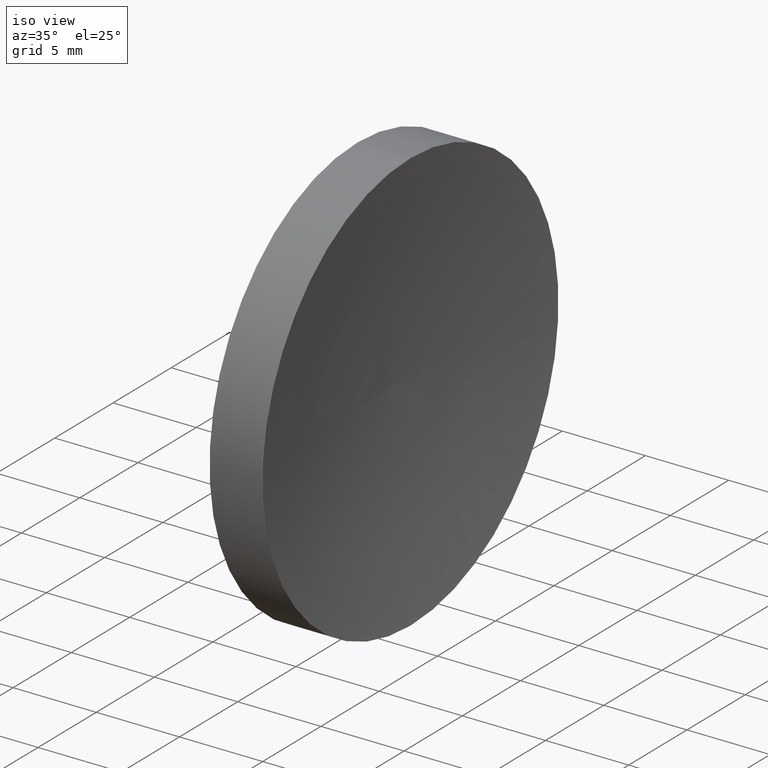
[diagram: clean part render]
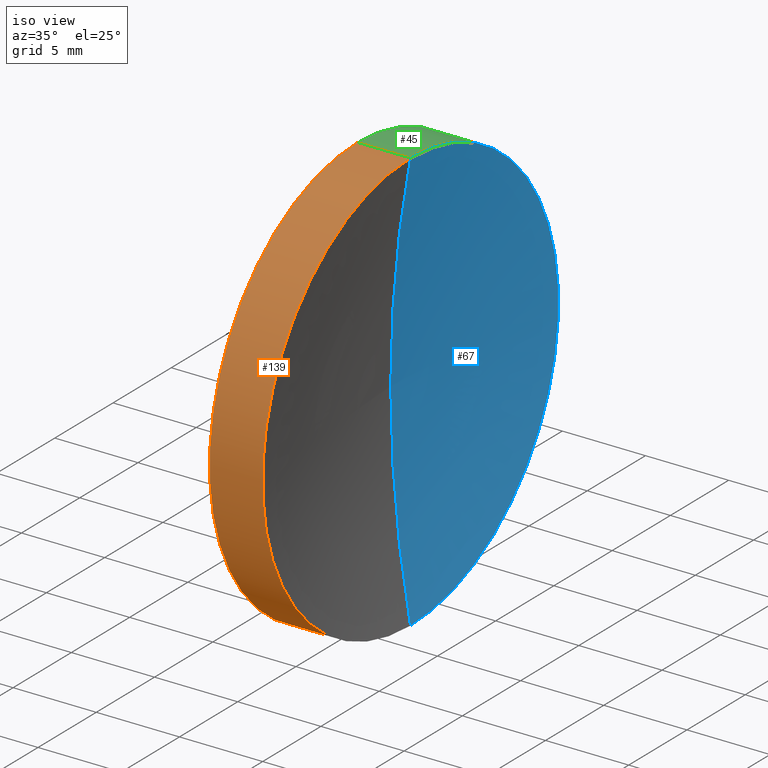
[diagram: same view with three faces highlighted in distinct colors, each labeled with its STEP entity id]
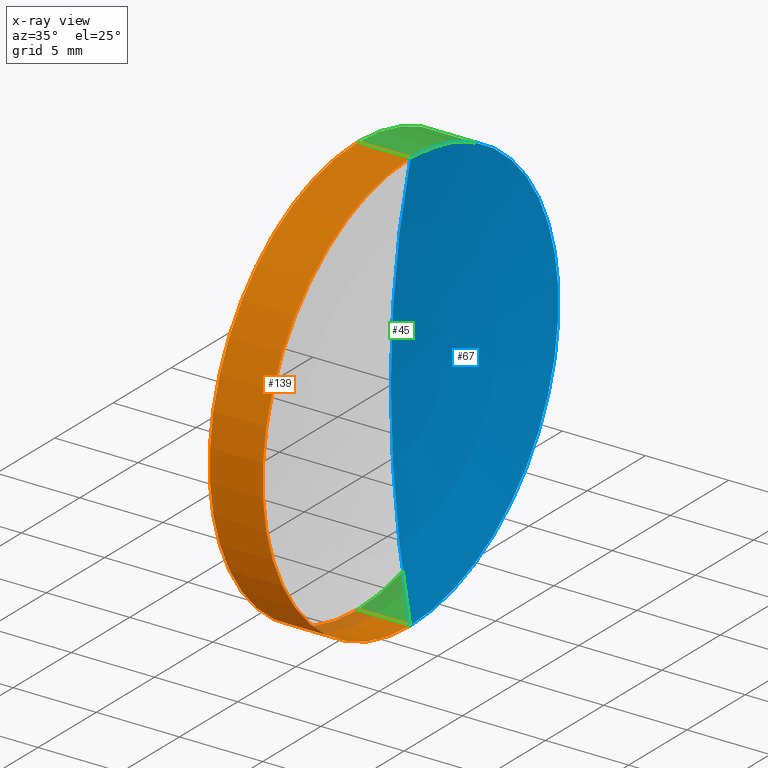
[diagram: x-ray of the same camera — body ghosted, the three highlighted faces saturated]
A machine part, iso view with three faces highlighted in distinct colors.
The next image is the same camera in x-ray (body ghosted, the three faces saturated) — at least one of them is partly hidden behind the body in this view.
Their STEP definitions:

[orange] entity #139 — the highlighted cylindrical surface (partial cylindrical patch) has radius 12.7 mm, axis along (-1, -0, -0).
#1 = CARTESIAN_POINT ( 'NONE',  ( 111.9552297575605700, 71.19398908659370300, 0.0000000000000000000 ) ) ;
#5 = CYLINDRICAL_SURFACE ( 'NONE', #133, 12.69999999999998900 ) ;
#8 = LINE ( 'NONE', #59, #159 ) ;
#10 = CARTESIAN_POINT ( 'NONE',  ( 122.5491730701731500, 71.19398908659370300, -12.69999999999995800 ) ) ;
#13 = CARTESIAN_POINT ( 'NONE',  ( 122.5491730701731500, 71.19398908659370300, 0.0000000000000000000 ) ) ;
#15 = EDGE_CURVE ( 'NONE', #27, #134, #8, .T. ) ;
#21 = LINE ( 'NONE', #48, #78 ) ;
#22 = VERTEX_POINT ( 'NONE', #154 ) ;
#27 = VERTEX_POINT ( 'NONE', #10 ) ;
#28 = DIRECTION ( 'NONE',  ( -1.000000000000000000, -0.0000000000000000000, -0.0000000000000000000 ) ) ;
#29 = CARTESIAN_POINT ( 'NONE',  ( 119.3629307920347200, 71.19398908659370300, 0.0000000000000000000 ) ) ;
#34 = ORIENTED_EDGE ( 'NONE', *, *, #15, .F. ) ;
#39 = DIRECTION ( 'NONE',  ( -1.000000000000000000, -0.0000000000000000000, -0.0000000000000000000 ) ) ;
#40 = EDGE_LOOP ( 'NONE', ( #34, #66, #79, #155 ) ) ;
#47 = AXIS2_PLACEMENT_3D ( 'NONE', #13, #39, #99 ) ;
#48 = CARTESIAN_POINT ( 'NONE',  ( 111.9552297575605700, 71.19398908659370300, 12.69999999999998900 ) ) ;
#49 = DIRECTION ( 'NONE',  ( 0.0000000000000000000, 0.0000000000000000000, 1.000000000000000000 ) ) ;
#56 = DIRECTION ( 'NONE',  ( -1.000000000000000000, -0.0000000000000000000, -0.0000000000000000000 ) ) ;
#59 = CARTESIAN_POINT ( 'NONE',  ( 111.9552297575605700, 71.19398908659370300, -12.69999999999998900 ) ) ;
#66 = ORIENTED_EDGE ( 'NONE', *, *, #149, .T. ) ;
#73 = DIRECTION ( 'NONE',  ( 0.0000000000000000000, 0.0000000000000000000, 1.000000000000000000 ) ) ;
#78 = VECTOR ( 'NONE', #165, 1000.000000000000000 ) ;
#79 = ORIENTED_EDGE ( 'NONE', *, *, #122, .T. ) ;
#84 = CARTESIAN_POINT ( 'NONE',  ( 119.3629307920347200, 71.19398908659370300, 12.70000000000000300 ) ) ;
#86 = CIRCLE ( 'NONE', #47, 12.69999999999997400 ) ;
#99 = DIRECTION ( 'NONE',  ( 0.0000000000000000000, 0.0000000000000000000, 1.000000000000000000 ) ) ;
#104 = EDGE_CURVE ( 'NONE', #134, #160, #118, .T. ) ;
#112 = CARTESIAN_POINT ( 'NONE',  ( 119.3629307920347200, 71.19398908659370300, -12.70000000000000300 ) ) ;
#117 = AXIS2_PLACEMENT_3D ( 'NONE', #29, #28, #73 ) ;
#118 = CIRCLE ( 'NONE', #117, 12.70000000000000300 ) ;
#122 = EDGE_CURVE ( 'NONE', #22, #160, #21, .T. ) ;
#133 = AXIS2_PLACEMENT_3D ( 'NONE', #1, #147, #49 ) ;
#134 = VERTEX_POINT ( 'NONE', #112 ) ;
#139 = ADVANCED_FACE ( 'NONE', ( #162 ), #5, .T. ) ;
#147 = DIRECTION ( 'NONE',  ( -1.000000000000000000, -0.0000000000000000000, -0.0000000000000000000 ) ) ;
#149 = EDGE_CURVE ( 'NONE', #27, #22, #86, .T. ) ;
#154 = CARTESIAN_POINT ( 'NONE',  ( 122.5491730701731500, 71.19398908659370300, 12.69999999999995800 ) ) ;
#155 = ORIENTED_EDGE ( 'NONE', *, *, #104, .F. ) ;
#159 = VECTOR ( 'NONE', #56, 1000.000000000000000 ) ;
#160 = VERTEX_POINT ( 'NONE', #84 ) ;
#162 = FACE_OUTER_BOUND ( 'NONE', #40, .T. ) ;
#165 = DIRECTION ( 'NONE',  ( -1.000000000000000000, -0.0000000000000000000, -0.0000000000000000000 ) ) ;

[blue] entity #67 — the highlighted toroidal blend (fillet) surface has major radius 0.0181 mm and minor (blend) radius 68.77 mm.
#2 = CARTESIAN_POINT ( 'NONE',  ( 122.5491730701731500, 71.19398908659370300, 0.0000000000000000000 ) ) ;
#7 = EDGE_CURVE ( 'NONE', #22, #17, #60, .T. ) ;
#10 = CARTESIAN_POINT ( 'NONE',  ( 122.5491730701731500, 71.19398908659370300, -12.69999999999995800 ) ) ;
#17 = VERTEX_POINT ( 'NONE', #107 ) ;
#22 = VERTEX_POINT ( 'NONE', #154 ) ;
#26 = AXIS2_PLACEMENT_3D ( 'NONE', #36, #141, #153 ) ;
#27 = VERTEX_POINT ( 'NONE', #10 ) ;
#36 = CARTESIAN_POINT ( 'NONE',  ( 190.1329284220462900, 71.19398908659370300, -0.01805458936847415000 ) ) ;
#46 = CARTESIAN_POINT ( 'NONE',  ( 190.1329284220462900, 71.19398908659370300, 0.01805458936847415000 ) ) ;
#60 = CIRCLE ( 'NONE', #26, 68.76999999999996800 ) ;
#67 = ADVANCED_FACE ( 'NONE', ( #132 ), #80, .F. ) ;
#69 = ORIENTED_EDGE ( 'NONE', *, *, #7, .T. ) ;
#72 = DIRECTION ( 'NONE',  ( 0.0000000000000000000, 0.0000000000000000000, 1.000000000000000000 ) ) ;
#74 = DIRECTION ( 'NONE',  ( 0.0000000000000000000, -2.018000262878357300E-016, 1.000000000000000000 ) ) ;
#80 = TOROIDAL_SURFACE ( 'NONE', #156, -0.01805458936847415000, 68.76999999999996800 ) ;
#91 = EDGE_LOOP ( 'NONE', ( #151, #130, #69 ) ) ;
#95 = CARTESIAN_POINT ( 'NONE',  ( 190.1329284220462900, 71.19398908659370300, 0.0000000000000000000 ) ) ;
#96 = DIRECTION ( 'NONE',  ( -0.0000000000000000000, 1.000000000000000000, 1.224646799147353200E-016 ) ) ;
#98 = AXIS2_PLACEMENT_3D ( 'NONE', #2, #142, #72 ) ;
#103 = AXIS2_PLACEMENT_3D ( 'NONE', #46, #96, #74 ) ;
#107 = CARTESIAN_POINT ( 'NONE',  ( 121.3629307920347000, 71.19398908659370300, 0.0000000000000000000 ) ) ;
#109 = DIRECTION ( 'NONE',  ( 0.0000000000000000000, 0.0000000000000000000, 1.000000000000000000 ) ) ;
#113 = CIRCLE ( 'NONE', #103, 68.76999999999996800 ) ;
#115 = EDGE_CURVE ( 'NONE', #27, #17, #113, .T. ) ;
#120 = CIRCLE ( 'NONE', #98, 12.69999999999997400 ) ;
#123 = DIRECTION ( 'NONE',  ( -1.000000000000000000, -0.0000000000000000000, -0.0000000000000000000 ) ) ;
#130 = ORIENTED_EDGE ( 'NONE', *, *, #163, .F. ) ;
#132 = FACE_OUTER_BOUND ( 'NONE', #91, .T. ) ;
#141 = DIRECTION ( 'NONE',  ( 0.0000000000000000000, -1.000000000000000000, 0.0000000000000000000 ) ) ;
#142 = DIRECTION ( 'NONE',  ( -1.000000000000000000, -0.0000000000000000000, -0.0000000000000000000 ) ) ;
#151 = ORIENTED_EDGE ( 'NONE', *, *, #115, .F. ) ;
#153 = DIRECTION ( 'NONE',  ( 0.0000000000000000000, 0.0000000000000000000, -1.000000000000000000 ) ) ;
#154 = CARTESIAN_POINT ( 'NONE',  ( 122.5491730701731500, 71.19398908659370300, 12.69999999999995800 ) ) ;
#156 = AXIS2_PLACEMENT_3D ( 'NONE', #95, #123, #109 ) ;
#163 = EDGE_CURVE ( 'NONE', #22, #27, #120, .T. ) ;

[green] entity #45 — the highlighted cylindrical surface (partial cylindrical patch) has radius 12.7 mm, axis along (-1, -0, -0).
#2 = CARTESIAN_POINT ( 'NONE',  ( 122.5491730701731500, 71.19398908659370300, 0.0000000000000000000 ) ) ;
#4 = ORIENTED_EDGE ( 'NONE', *, *, #15, .T. ) ;
#8 = LINE ( 'NONE', #59, #159 ) ;
#10 = CARTESIAN_POINT ( 'NONE',  ( 122.5491730701731500, 71.19398908659370300, -12.69999999999995800 ) ) ;
#15 = EDGE_CURVE ( 'NONE', #27, #134, #8, .T. ) ;
#18 = CARTESIAN_POINT ( 'NONE',  ( 119.3629307920347200, 71.19398908659370300, 0.0000000000000000000 ) ) ;
#21 = LINE ( 'NONE', #48, #78 ) ;
#22 = VERTEX_POINT ( 'NONE', #154 ) ;
#24 = FACE_OUTER_BOUND ( 'NONE', #158, .T. ) ;
#27 = VERTEX_POINT ( 'NONE', #10 ) ;
#45 = ADVANCED_FACE ( 'NONE', ( #24 ), #108, .T. ) ;
#48 = CARTESIAN_POINT ( 'NONE',  ( 111.9552297575605700, 71.19398908659370300, 12.69999999999998900 ) ) ;
#56 = DIRECTION ( 'NONE',  ( -1.000000000000000000, -0.0000000000000000000, -0.0000000000000000000 ) ) ;
#59 = CARTESIAN_POINT ( 'NONE',  ( 111.9552297575605700, 71.19398908659370300, -12.69999999999998900 ) ) ;
#71 = CARTESIAN_POINT ( 'NONE',  ( 111.9552297575605700, 71.19398908659370300, 0.0000000000000000000 ) ) ;
#72 = DIRECTION ( 'NONE',  ( 0.0000000000000000000, 0.0000000000000000000, 1.000000000000000000 ) ) ;
#75 = ORIENTED_EDGE ( 'NONE', *, *, #122, .F. ) ;
#78 = VECTOR ( 'NONE', #165, 1000.000000000000000 ) ;
#81 = DIRECTION ( 'NONE',  ( 0.0000000000000000000, 0.0000000000000000000, 1.000000000000000000 ) ) ;
#84 = CARTESIAN_POINT ( 'NONE',  ( 119.3629307920347200, 71.19398908659370300, 12.70000000000000300 ) ) ;
#85 = ORIENTED_EDGE ( 'NONE', *, *, #163, .T. ) ;
#94 = ORIENTED_EDGE ( 'NONE', *, *, #138, .F. ) ;
#98 = AXIS2_PLACEMENT_3D ( 'NONE', #2, #142, #72 ) ;
#101 = DIRECTION ( 'NONE',  ( 0.0000000000000000000, 0.0000000000000000000, 1.000000000000000000 ) ) ;
#108 = CYLINDRICAL_SURFACE ( 'NONE', #148, 12.69999999999998900 ) ;
#112 = CARTESIAN_POINT ( 'NONE',  ( 119.3629307920347200, 71.19398908659370300, -12.70000000000000300 ) ) ;
#120 = CIRCLE ( 'NONE', #98, 12.69999999999997400 ) ;
#121 = AXIS2_PLACEMENT_3D ( 'NONE', #18, #125, #101 ) ;
#122 = EDGE_CURVE ( 'NONE', #22, #160, #21, .T. ) ;
#125 = DIRECTION ( 'NONE',  ( -1.000000000000000000, -0.0000000000000000000, -0.0000000000000000000 ) ) ;
#134 = VERTEX_POINT ( 'NONE', #112 ) ;
#135 = CIRCLE ( 'NONE', #121, 12.70000000000000300 ) ;
#138 = EDGE_CURVE ( 'NONE', #160, #134, #135, .T. ) ;
#142 = DIRECTION ( 'NONE',  ( -1.000000000000000000, -0.0000000000000000000, -0.0000000000000000000 ) ) ;
#148 = AXIS2_PLACEMENT_3D ( 'NONE', #71, #152, #81 ) ;
#152 = DIRECTION ( 'NONE',  ( -1.000000000000000000, -0.0000000000000000000, -0.0000000000000000000 ) ) ;
#154 = CARTESIAN_POINT ( 'NONE',  ( 122.5491730701731500, 71.19398908659370300, 12.69999999999995800 ) ) ;
#158 = EDGE_LOOP ( 'NONE', ( #85, #4, #94, #75 ) ) ;
#159 = VECTOR ( 'NONE', #56, 1000.000000000000000 ) ;
#160 = VERTEX_POINT ( 'NONE', #84 ) ;
#163 = EDGE_CURVE ( 'NONE', #22, #27, #120, .T. ) ;
#165 = DIRECTION ( 'NONE',  ( -1.000000000000000000, -0.0000000000000000000, -0.0000000000000000000 ) ) ;